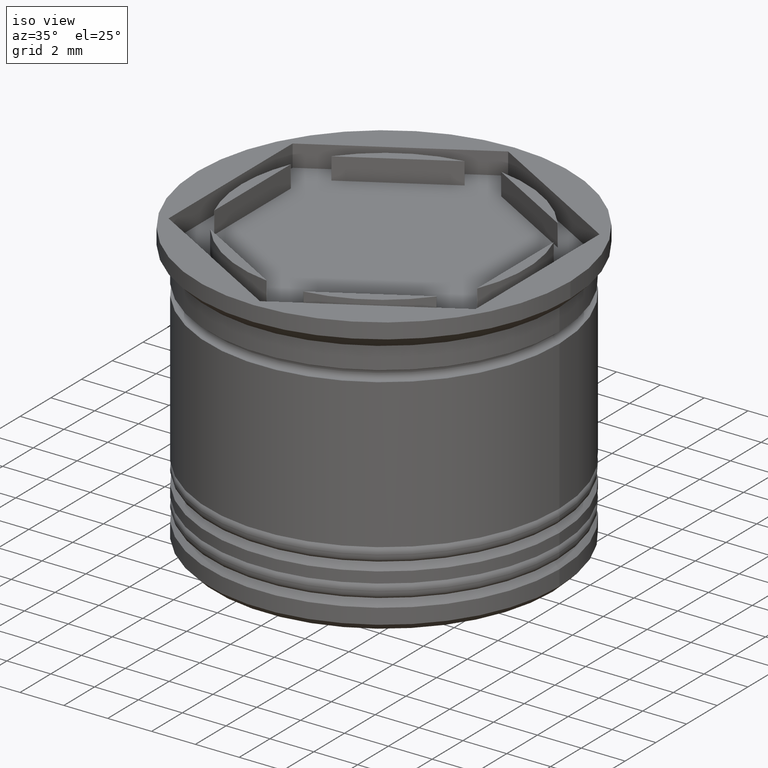
[diagram: clean part render]
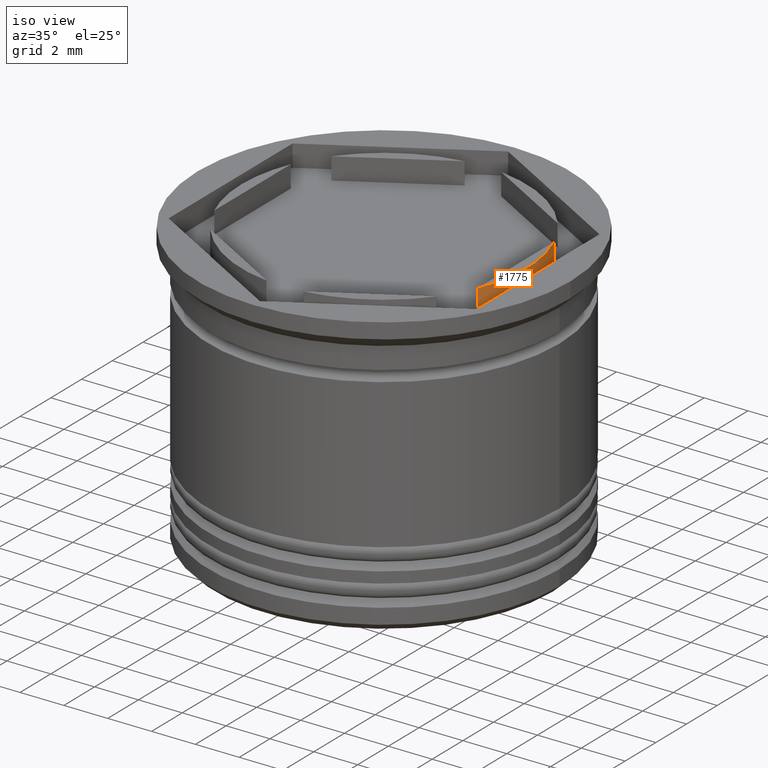
[diagram: same view with one face highlighted and labeled with its STEP entity id]
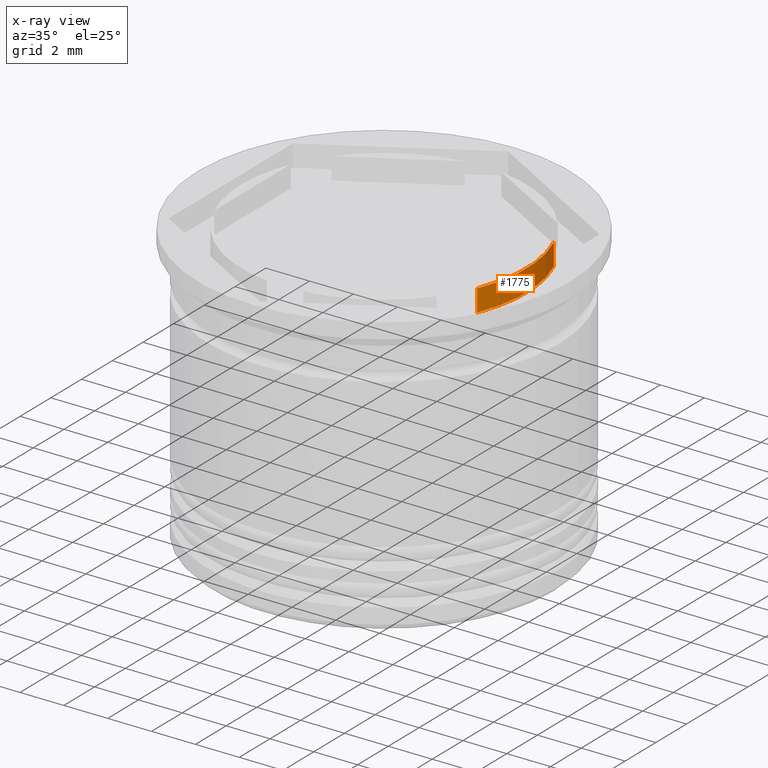
[diagram: x-ray of the same camera — body ghosted, the highlighted face saturated]
A machine part, iso view. The second image highlights one B-rep face of the part: STEP entity #1775.
The next image is the same camera in x-ray: the body ghosted, the highlighted face saturated — about 0% of this face is hidden behind the body in this view.
In plain terms, the highlighted cylindrical surface (partial cylindrical patch) has radius 6.5 mm, axis along (-0, -0, -1).
Its self-contained STEP definition (entity closure, byte-faithful):
#130 = EDGE_CURVE ( 'NONE', #1664, #212, #1972, .T. ) ;
#143 = AXIS2_PLACEMENT_3D ( 'NONE', #1185, #1157, #378 ) ;
#146 = CIRCLE ( 'NONE', #1298, 6.500000000000000888 ) ;
#157 = EDGE_CURVE ( 'NONE', #187, #1664, #1007, .T. ) ;
#164 = CARTESIAN_POINT ( 'NONE',  ( 6.000000000000000888, 2.500000000000000444, 0.000000000000000000 ) ) ;
#179 = CARTESIAN_POINT ( 'NONE',  ( 0.000000000000000000, 0.000000000000000000, 0.000000000000000000 ) ) ;
#187 = VERTEX_POINT ( 'NONE', #1626 ) ;
#212 = VERTEX_POINT ( 'NONE', #544 ) ;
#224 = VERTEX_POINT ( 'NONE', #164 ) ;
#231 = DIRECTION ( 'NONE',  ( 0.000000000000000000, 0.000000000000000000, 1.000000000000000000 ) ) ;
#327 = ORIENTED_EDGE ( 'NONE', *, *, #157, .T. ) ;
#347 = VECTOR ( 'NONE', #1604, 1000.000000000000000 ) ;
#352 = ORIENTED_EDGE ( 'NONE', *, *, #799, .F. ) ;
#378 = DIRECTION ( 'NONE',  ( 1.000000000000000000, 0.000000000000000000, 0.000000000000000000 ) ) ;
#521 = ORIENTED_EDGE ( 'NONE', *, *, #1694, .T. ) ;
#523 = VECTOR ( 'NONE', #231, 1000.000000000000000 ) ;
#544 = CARTESIAN_POINT ( 'NONE',  ( 6.000000000000000888, 2.500000000000000444, -1.000000000000000888 ) ) ;
#565 = CARTESIAN_POINT ( 'NONE',  ( 0.000000000000000000, 0.000000000000000000, 18.38477631085023134 ) ) ;
#649 = EDGE_LOOP ( 'NONE', ( #352, #327, #1287, #521 ) ) ;
#737 = FACE_OUTER_BOUND ( 'NONE', #649, .T. ) ;
#799 = EDGE_CURVE ( 'NONE', #187, #224, #146, .T. ) ;
#800 = DIRECTION ( 'NONE',  ( 1.000000000000000000, 0.000000000000000000, 0.000000000000000000 ) ) ;
#866 = CARTESIAN_POINT ( 'NONE',  ( 6.000000000000000888, 2.500000000000000444, 18.38477631085023134 ) ) ;
#980 = CARTESIAN_POINT ( 'NONE',  ( 5.999999999999999112, -2.500000000000003109, -1.000000000000000888 ) ) ;
#1007 = LINE ( 'NONE', #1747, #347 ) ;
#1157 = DIRECTION ( 'NONE',  ( 0.000000000000000000, 0.000000000000000000, 1.000000000000000000 ) ) ;
#1160 = DIRECTION ( 'NONE',  ( -0.000000000000000000, -0.000000000000000000, -1.000000000000000000 ) ) ;
#1185 = CARTESIAN_POINT ( 'NONE',  ( 0.000000000000000000, 0.000000000000000000, -1.000000000000000000 ) ) ;
#1287 = ORIENTED_EDGE ( 'NONE', *, *, #130, .T. ) ;
#1298 = AXIS2_PLACEMENT_3D ( 'NONE', #179, #1413, #800 ) ;
#1346 = CYLINDRICAL_SURFACE ( 'NONE', #1364, 6.500000000000000888 ) ;
#1364 = AXIS2_PLACEMENT_3D ( 'NONE', #565, #1160, #1937 ) ;
#1413 = DIRECTION ( 'NONE',  ( -0.000000000000000000, -0.000000000000000000, 1.000000000000000000 ) ) ;
#1463 = LINE ( 'NONE', #866, #523 ) ;
#1604 = DIRECTION ( 'NONE',  ( -0.000000000000000000, -0.000000000000000000, -1.000000000000000000 ) ) ;
#1626 = CARTESIAN_POINT ( 'NONE',  ( 5.999999999999999112, -2.500000000000003109, 0.000000000000000000 ) ) ;
#1664 = VERTEX_POINT ( 'NONE', #980 ) ;
#1694 = EDGE_CURVE ( 'NONE', #212, #224, #1463, .T. ) ;
#1747 = CARTESIAN_POINT ( 'NONE',  ( 5.999999999999999112, -2.500000000000003109, 18.38477631085023134 ) ) ;
#1775 = ADVANCED_FACE ( 'NONE', ( #737 ), #1346, .T. ) ;
#1937 = DIRECTION ( 'NONE',  ( -1.000000000000000000, 0.000000000000000000, 0.000000000000000000 ) ) ;
#1972 = CIRCLE ( 'NONE', #143, 6.500000000000000888 ) ;